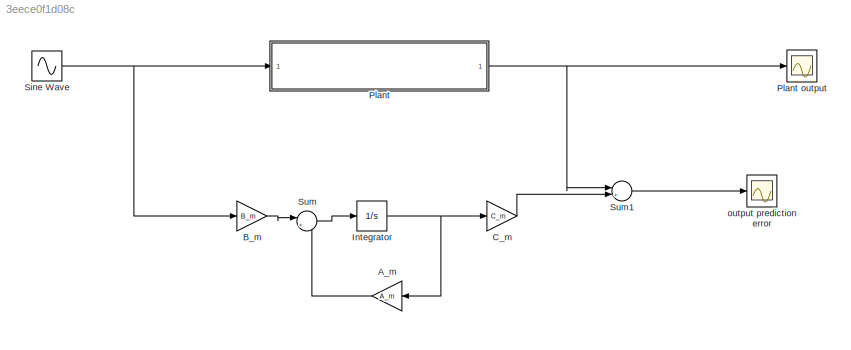
MODEL slx_3eece0f1d08c
KIND model
BLOCK [Gain] A_m
  Gain = A_m
  Multiplication = Matrix(K*u)
  OutDataTypeStr = Inherit: Inherit via internal rule
  ParamDataTypeStr = Inherit: Inherit via internal rule
  SaturateOnIntegerOverflow = off
BLOCK [Gain] B_m
  Gain = B_m
  Multiplication = Matrix(K*u)
  OutDataTypeStr = Inherit: Inherit via internal rule
  ParamDataTypeStr = Inherit: Inherit via internal rule
  SaturateOnIntegerOverflow = off
BLOCK [Gain] C_m
  Gain = C_m
  Multiplication = Matrix(K*u)
  OutDataTypeStr = Inherit: Inherit via internal rule
  ParamDataTypeStr = Inherit: Inherit via internal rule
  SaturateOnIntegerOverflow = off
BLOCK [Integrator] Integrator
  InitialCondition = [0.5 0.5]'
  Ports = [1, 1]
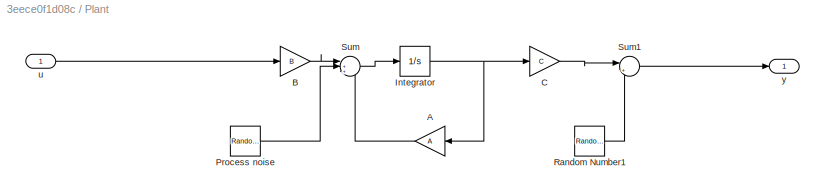
BLOCK [SubSystem] Plant
  Ports = [1, 1]
  RequestExecContextInheritance = off
BLOCK [Scope] Plant output
  DataFormat = StructureWithTime
  Floating = off
  NumInputPorts = 1
  Ports = [1]
  SampleTime = 0
  ShowLegends = off
BLOCK [Gain] Plant/A
  Gain = A
  Multiplication = Matrix(K*u)
  OutDataTypeStr = Inherit: Inherit via internal rule
  ParamDataTypeStr = Inherit: Inherit via internal rule
  SaturateOnIntegerOverflow = off
BLOCK [Gain] Plant/B
  Gain = B
  Multiplication = Matrix(K*u)
  OutDataTypeStr = Inherit: Inherit via internal rule
  ParamDataTypeStr = Inherit: Inherit via internal rule
  SaturateOnIntegerOverflow = off
BLOCK [Gain] Plant/C
  Gain = C
  Multiplication = Matrix(K*u)
  OutDataTypeStr = Inherit: Inherit via internal rule
  ParamDataTypeStr = Inherit: Inherit via internal rule
  SaturateOnIntegerOverflow = off
BLOCK [Integrator] Plant/Integrator
  InitialCondition = [0.5 0.5]'
  Ports = [1, 1]
BLOCK [RandomNumber] Plant/Process noise
  Mean = zeros(size(A,2),1)
  SampleTime = 0.1
  Variance = diag(Q)
BLOCK [RandomNumber] Plant/Random Number1
  Mean = zeros(size(C,1),1)
  SampleTime = 0.1
  Variance = diag(R)
BLOCK [Sum] Plant/Sum
  IconShape = round
  InputSameDT = off
  Inputs = |+++
  OutDataTypeStr = Inherit: Inherit via internal rule
  Ports = [3, 1]
  SaturateOnIntegerOverflow = off
BLOCK [Sum] Plant/Sum1
  IconShape = round
  InputSameDT = off
  Inputs = |++
  OutDataTypeStr = Inherit: Inherit via internal rule
  Ports = [2, 1]
  SaturateOnIntegerOverflow = off
BLOCK [Inport] Plant/u
  IconDisplay = Port number
BLOCK [Outport] Plant/y
  IconDisplay = Port number
BLOCK [Sin] Sine Wave
  Ports = [0, 1]
  SampleTime = 0
BLOCK [Sum] Sum
  IconShape = round
  InputSameDT = off
  Inputs = |++
  OutDataTypeStr = Inherit: Inherit via internal rule
  Ports = [2, 1]
  SaturateOnIntegerOverflow = off
BLOCK [Sum] Sum1
  IconShape = round
  InputSameDT = off
  Inputs = |+-
  OutDataTypeStr = Inherit: Inherit via internal rule
  Ports = [2, 1]
  SaturateOnIntegerOverflow = off
BLOCK [Scope] output prediction error
  DataFormat = StructureWithTime
  Floating = off
  NumInputPorts = 1
  Ports = [1]
  SampleTime = 0
  SaveName = ScopeData1
  ShowLegends = off
LINE A_m:1 -> Sum:2
LINE B_m:1 -> Sum:1
LINE C_m:1 -> Sum1:2
NET Integrator:1 -> A_m:1, C_m:1
LINE Plant/A:1 -> Plant/Sum:3
LINE Plant/B:1 -> Plant/Sum:1
LINE Plant/C:1 -> Plant/Sum1:1
NET Plant/Integrator:1 -> Plant/A:1, Plant/C:1
LINE Plant/Process noise:1 -> Plant/Sum:2
LINE Plant/Random Number1:1 -> Plant/Sum1:2
LINE Plant/Sum1:1 -> Plant/y:1
LINE Plant/Sum:1 -> Plant/Integrator:1
LINE Plant/u:1 -> Plant/B:1
NET Plant:1 -> Plant output:1, Sum1:1
NET Sine Wave:1 -> B_m:1, Plant:1
LINE Sum1:1 -> output prediction error:1
LINE Sum:1 -> Integrator:1
note: NET lines group one-source signal fan-out (src -> all destinations, sorted); 1:1 wires keep LINE
